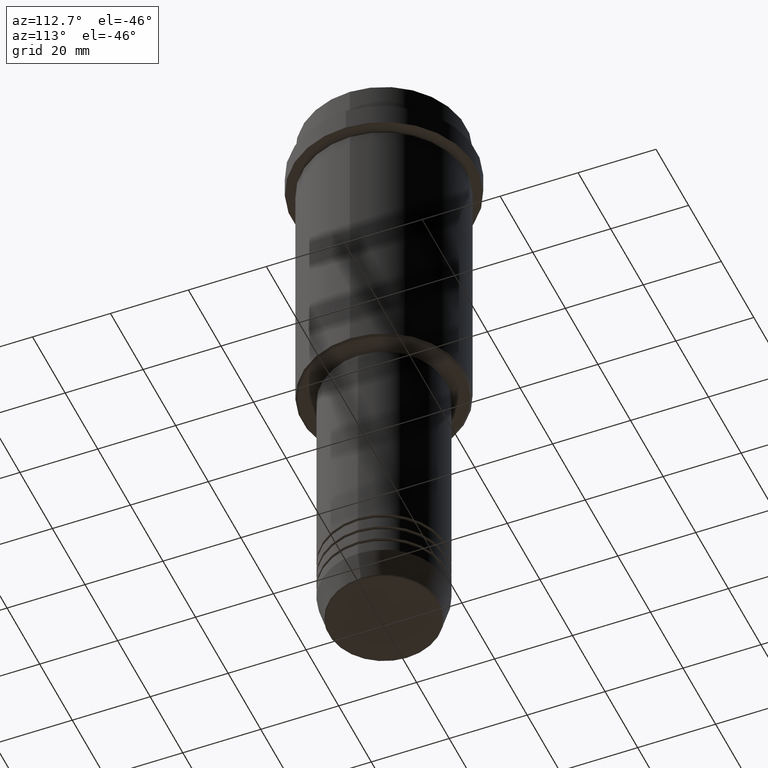
[diagram: clean part render]
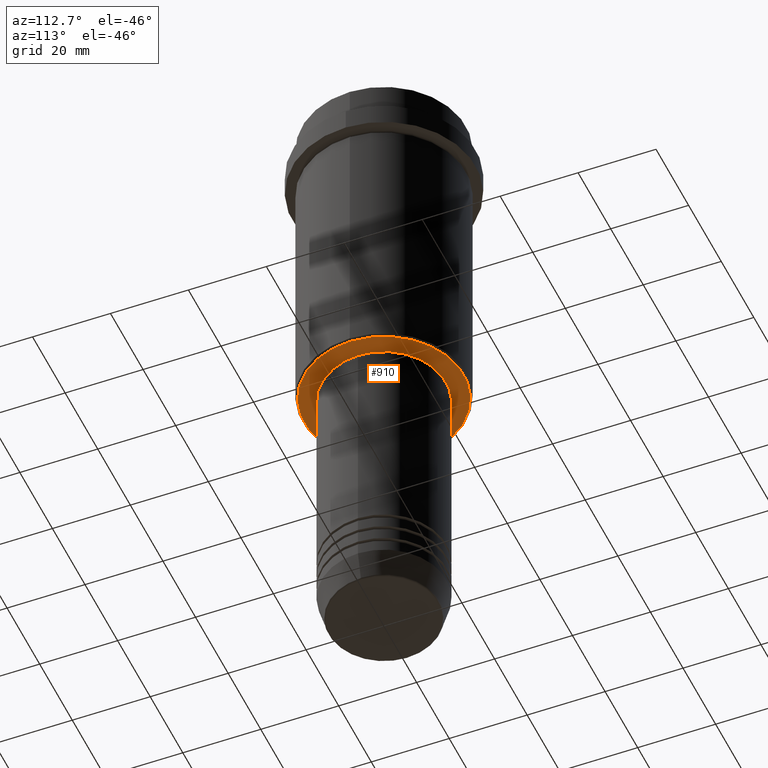
[diagram: same view with one face highlighted and labeled with its STEP entity id]
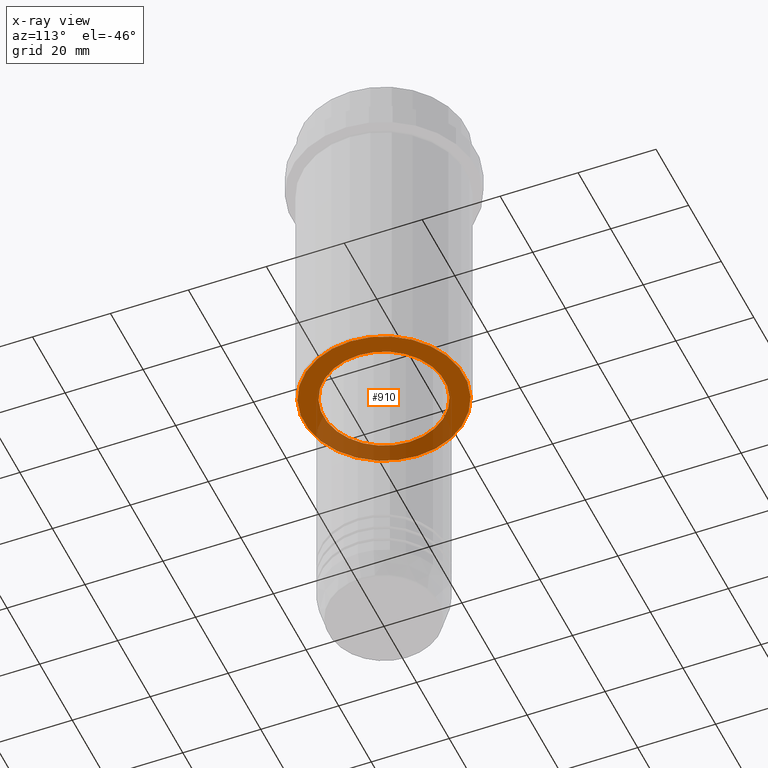
[diagram: x-ray of the same camera — body ghosted, the highlighted face saturated]
A machine part, auxiliary view. The second image highlights one B-rep face of the part: STEP entity #910.
The next image is the same camera in x-ray: the body ghosted, the highlighted face saturated — about 33% of this face is hidden behind the body in this view.
In plain terms, the highlighted planar face has unit normal (0, 0, -1).
Its self-contained STEP definition (entity closure, byte-faithful):
#27 = VERTEX_POINT ( 'NONE', #963 ) ;
#68 = DIRECTION ( 'NONE',  ( -1.000000000000000000, 0.000000000000000000, -0.000000000000000000 ) ) ;
#79 = CIRCLE ( 'NONE', #1242, 15.49999999999999645 ) ;
#175 = CARTESIAN_POINT ( 'NONE',  ( 15.49999999999999645, 0.000000000000000000, -85.00000000000000000 ) ) ;
#192 = PLANE ( 'NONE',  #1065 ) ;
#267 = DIRECTION ( 'NONE',  ( 0.000000000000000000, 0.000000000000000000, -1.000000000000000000 ) ) ;
#280 = CARTESIAN_POINT ( 'NONE',  ( 0.000000000000000000, 0.000000000000000000, -85.00000000000000000 ) ) ;
#339 = EDGE_CURVE ( 'NONE', #708, #27, #483, .T. ) ;
#347 = EDGE_CURVE ( 'NONE', #1148, #592, #805, .T. ) ;
#367 = DIRECTION ( 'NONE',  ( -0.000000000000000000, -0.000000000000000000, 1.000000000000000000 ) ) ;
#371 = DIRECTION ( 'NONE',  ( -0.000000000000000000, -0.000000000000000000, 1.000000000000000000 ) ) ;
#372 = DIRECTION ( 'NONE',  ( 1.000000000000000000, 0.000000000000000000, 0.000000000000000000 ) ) ;
#381 = CARTESIAN_POINT ( 'NONE',  ( 0.000000000000000000, 0.000000000000000000, -85.00000000000000000 ) ) ;
#408 = FACE_BOUND ( 'NONE', #1329, .T. ) ;
#429 = CARTESIAN_POINT ( 'NONE',  ( -20.50000000000003197, 2.541142108230759846E-15, -85.00000000000000000 ) ) ;
#434 = ORIENTED_EDGE ( 'NONE', *, *, #1112, .T. ) ;
#483 = CIRCLE ( 'NONE', #669, 15.49999999999999645 ) ;
#495 = FACE_OUTER_BOUND ( 'NONE', #830, .T. ) ;
#569 = CARTESIAN_POINT ( 'NONE',  ( 0.000000000000000000, 0.000000000000000000, -85.00000000000000000 ) ) ;
#587 = CARTESIAN_POINT ( 'NONE',  ( 20.50000000000003197, 0.000000000000000000, -85.00000000000000000 ) ) ;
#592 = VERTEX_POINT ( 'NONE', #429 ) ;
#595 = AXIS2_PLACEMENT_3D ( 'NONE', #381, #929, #685 ) ;
#597 = CIRCLE ( 'NONE', #1408, 20.50000000000003197 ) ;
#669 = AXIS2_PLACEMENT_3D ( 'NONE', #1034, #367, #372 ) ;
#685 = DIRECTION ( 'NONE',  ( -1.000000000000000000, 0.000000000000000000, 0.000000000000000000 ) ) ;
#697 = DIRECTION ( 'NONE',  ( -1.000000000000000000, 0.000000000000000000, 0.000000000000000000 ) ) ;
#708 = VERTEX_POINT ( 'NONE', #175 ) ;
#729 = EDGE_CURVE ( 'NONE', #27, #708, #79, .T. ) ;
#805 = CIRCLE ( 'NONE', #595, 20.50000000000003197 ) ;
#830 = EDGE_LOOP ( 'NONE', ( #1257, #434 ) ) ;
#910 = ADVANCED_FACE ( 'NONE', ( #495, #408 ), #192, .T. ) ;
#929 = DIRECTION ( 'NONE',  ( 0.000000000000000000, 0.000000000000000000, -1.000000000000000000 ) ) ;
#963 = CARTESIAN_POINT ( 'NONE',  ( -15.49999999999999645, 1.898202538678397163E-15, -85.00000000000000000 ) ) ;
#986 = ORIENTED_EDGE ( 'NONE', *, *, #729, .T. ) ;
#1034 = CARTESIAN_POINT ( 'NONE',  ( 0.000000000000000000, 0.000000000000000000, -85.00000000000000000 ) ) ;
#1065 = AXIS2_PLACEMENT_3D ( 'NONE', #1395, #1266, #68 ) ;
#1112 = EDGE_CURVE ( 'NONE', #592, #1148, #597, .T. ) ;
#1148 = VERTEX_POINT ( 'NONE', #587 ) ;
#1242 = AXIS2_PLACEMENT_3D ( 'NONE', #280, #371, #1360 ) ;
#1257 = ORIENTED_EDGE ( 'NONE', *, *, #347, .T. ) ;
#1266 = DIRECTION ( 'NONE',  ( 0.000000000000000000, 0.000000000000000000, -1.000000000000000000 ) ) ;
#1329 = EDGE_LOOP ( 'NONE', ( #1401, #986 ) ) ;
#1360 = DIRECTION ( 'NONE',  ( 1.000000000000000000, 0.000000000000000000, 0.000000000000000000 ) ) ;
#1395 = CARTESIAN_POINT ( 'NONE',  ( 0.000000000000000000, 21.00000000000000000, -85.00000000000000000 ) ) ;
#1401 = ORIENTED_EDGE ( 'NONE', *, *, #339, .T. ) ;
#1408 = AXIS2_PLACEMENT_3D ( 'NONE', #569, #267, #697 ) ;